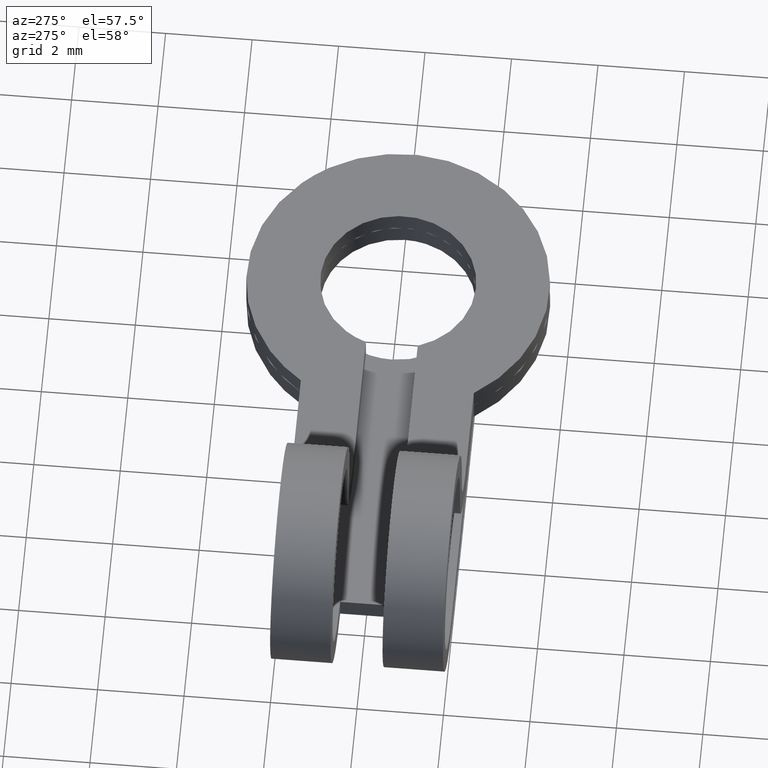
[diagram: clean part render]
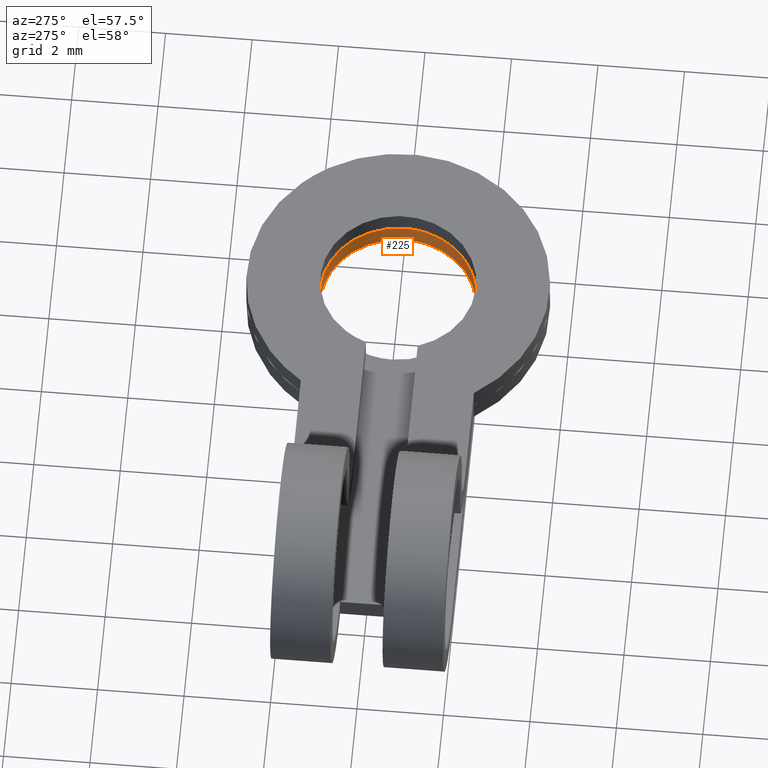
[diagram: same view with one face highlighted and labeled with its STEP entity id]
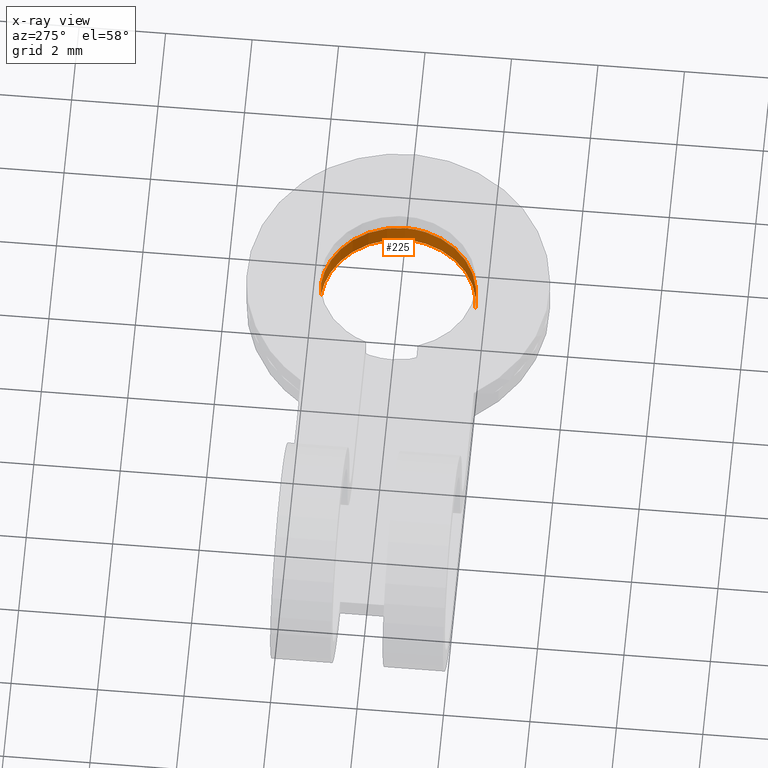
[diagram: x-ray of the same camera — body ghosted, the highlighted face saturated]
A machine part, auxiliary view. The second image highlights one B-rep face of the part: STEP entity #225.
The next image is the same camera in x-ray: the body ghosted, the highlighted face saturated — about 0% of this face is hidden behind the body in this view.
In plain terms, the highlighted face is a freeform B-spline surface patch.
Its self-contained STEP definition (entity closure, byte-faithful):
#64=CARTESIAN_POINT('',(8.758775942928166,-1.794451382929829,-2.499999999999828));
#65=VERTEX_POINT('',#64);
#79=CARTESIAN_POINT('',(9.041224057071837,1.794451382929829,-2.499999999999828));
#80=VERTEX_POINT('',#79);
#96=CARTESIAN_POINT('',(9.041224085594362,1.794451380685131,-2.0));
#97=VERTEX_POINT('',#96);
#98=CARTESIAN_POINT('',(9.041224085594362,1.794451380685131,-2.0));
#99=CARTESIAN_POINT('',(9.041224057071837,1.794451382929829,-2.499999999999828));
#100=QUASI_UNIFORM_CURVE('',1,(#98,#99),.UNSPECIFIED.,.F.,.U.);
#101=EDGE_CURVE('',#97,#80,#100,.T.);
#120=CARTESIAN_POINT('',(8.758775914405639,-1.794451380685131,-2.0));
#121=VERTEX_POINT('',#120);
#135=CARTESIAN_POINT('',(8.758775914405639,-1.794451380685131,-2.0));
#136=CARTESIAN_POINT('',(8.758775942928166,-1.794451382929829,-2.499999999999828));
#137=QUASI_UNIFORM_CURVE('',1,(#135,#136),.UNSPECIFIED.,.F.,.U.);
#138=EDGE_CURVE('',#121,#65,#137,.T.);
#143=CARTESIAN_POINT('',(9.041226372310122,1.794451200719630,-1.987500000000001));
#144=CARTESIAN_POINT('',(10.835677573029752,1.653224828409509,-1.987500000000001));
#145=CARTESIAN_POINT('',(10.694451200719630,-0.141226372310122,-1.987500000000001));
#146=CARTESIAN_POINT('',(10.553224828409508,-1.935677573029752,-1.987500000000001));
#147=CARTESIAN_POINT('',(8.758773627689878,-1.794451200719630,-1.987500000000001));
#148=CARTESIAN_POINT('',(9.041226372310122,1.794451200719630,-2.512812499999944));
#149=CARTESIAN_POINT('',(10.835677573029752,1.653224828409509,-2.512812499999944));
#150=CARTESIAN_POINT('',(10.694451200719630,-0.141226372310122,-2.512812499999944));
#151=CARTESIAN_POINT('',(10.553224828409508,-1.935677573029752,-2.512812499999944));
#152=CARTESIAN_POINT('',(8.758773627689878,-1.794451200719630,-2.512812499999944));
#160=(BOUNDED_SURFACE()B_SPLINE_SURFACE(2,1,((#143,#148),(#144,#149),(#145,#150),(#146,#151),(#147,#152)),.UNSPECIFIED.,.F.,.F.,.U.)B_SPLINE_SURFACE_WITH_KNOTS((3,2,3),(2,2),(0.0,1.570796326794897,3.141592653589793),(0.0,1.0),.UNSPECIFIED.)GEOMETRIC_REPRESENTATION_ITEM()RATIONAL_B_SPLINE_SURFACE(((1.0,1.0),(0.707106781186548,0.707106781186548),(1.0,1.0),(0.707106781186548,0.707106781186548),(1.0,1.0)))REPRESENTATION_ITEM('')SURFACE());
#161=CARTESIAN_POINT('',(10.699999999999999,0.0,-2.499999999999945));
#162=VERTEX_POINT('',#161);
#163=CARTESIAN_POINT('',(8.758775942928166,-1.794451382929829,-2.499999999999828));
#164=CARTESIAN_POINT('',(8.829278970377336,-1.800000000000000,-2.499999999999945));
#165=CARTESIAN_POINT('',(8.900000000000000,-1.800000000000000,-2.499999999999945));
#166=CARTESIAN_POINT('',(10.699999999999999,-1.800000000000001,-2.499999999999945));
#167=CARTESIAN_POINT('',(10.699999999999999,0.0,-2.499999999999945));
#175=(BOUNDED_CURVE()B_SPLINE_CURVE(2,(#163,#164,#165,#166,#167),.UNSPECIFIED.,.F.,.U.)B_SPLINE_CURVE_WITH_KNOTS((3,2,3),(0.236331521808242,0.250000000000000,0.500000000000000),.UNSPECIFIED.)CURVE()GEOMETRIC_REPRESENTATION_ITEM()RATIONAL_B_SPLINE_CURVE((0.969723817748618,0.983986381704538,1.0,0.707106781186547,1.0))REPRESENTATION_ITEM(''));
#176=EDGE_CURVE('',#65,#162,#175,.T.);
#177=ORIENTED_EDGE('',*,*,#176,.F.);
#178=ORIENTED_EDGE('',*,*,#138,.F.);
#179=CARTESIAN_POINT('',(10.699999999999999,0.0,-2.0));
#180=VERTEX_POINT('',#179);
#181=CARTESIAN_POINT('',(8.758775914405639,-1.794451380685132,-2.000000000000000));
#182=CARTESIAN_POINT('',(8.829278956049892,-1.800000000000000,-2.000000000000000));
#183=CARTESIAN_POINT('',(8.900000000000000,-1.800000000000000,-2.0));
#184=CARTESIAN_POINT('',(10.699999999999999,-1.800000000000001,-2.0));
#185=CARTESIAN_POINT('',(10.699999999999999,0.0,-2.0));
#193=(BOUNDED_CURVE()B_SPLINE_CURVE(2,(#181,#182,#183,#184,#185),.UNSPECIFIED.,.F.,.U.)B_SPLINE_CURVE_WITH_KNOTS((3,2,3),(0.236331519083475,0.250000000000000,0.500000000000000),.UNSPECIFIED.)CURVE()GEOMETRIC_REPRESENTATION_ITEM()RATIONAL_B_SPLINE_CURVE((0.969723812062226,0.983986378512275,1.0,0.707106781186547,1.0))REPRESENTATION_ITEM(''));
#194=EDGE_CURVE('',#121,#180,#193,.T.);
#195=ORIENTED_EDGE('',*,*,#194,.T.);
#196=CARTESIAN_POINT('',(10.699999999999999,0.0,-2.0));
#197=CARTESIAN_POINT('',(10.699999999999999,1.663905011897023,-2.000000000000000));
#198=CARTESIAN_POINT('',(9.041224085594362,1.794451380685131,-2.000000000000000));
#206=(BOUNDED_CURVE()B_SPLINE_CURVE(2,(#196,#197,#198),.UNSPECIFIED.,.F.,.U.)B_SPLINE_CURVE_WITH_KNOTS((3,3),(0.500000000000000,0.736331519083476),.UNSPECIFIED.)CURVE()GEOMETRIC_REPRESENTATION_ITEM()RATIONAL_B_SPLINE_CURVE((1.0,0.723120402674272,0.969723812062227))REPRESENTATION_ITEM(''));
#207=EDGE_CURVE('',#180,#97,#206,.T.);
#208=ORIENTED_EDGE('',*,*,#207,.T.);
#209=ORIENTED_EDGE('',*,*,#101,.T.);
#210=CARTESIAN_POINT('',(10.699999999999999,0.0,-2.499999999999945));
#211=CARTESIAN_POINT('',(10.700000000000001,1.663905038426307,-2.499999999999945));
#212=CARTESIAN_POINT('',(9.041224057071837,1.794451382929829,-2.499999999999828));
#220=(BOUNDED_CURVE()B_SPLINE_CURVE(2,(#210,#211,#212),.UNSPECIFIED.,.F.,.U.)B_SPLINE_CURVE_WITH_KNOTS((3,3),(0.500000000000000,0.736331521808242),.UNSPECIFIED.)CURVE()GEOMETRIC_REPRESENTATION_ITEM()RATIONAL_B_SPLINE_CURVE((1.0,0.723120399482009,0.969723817748617))REPRESENTATION_ITEM(''));
#221=EDGE_CURVE('',#162,#80,#220,.T.);
#222=ORIENTED_EDGE('',*,*,#221,.F.);
#223=EDGE_LOOP('',(#177,#178,#195,#208,#209,#222));
#224=FACE_OUTER_BOUND('',#223,.T.);
#225=ADVANCED_FACE('',(#224),#160,.F.);